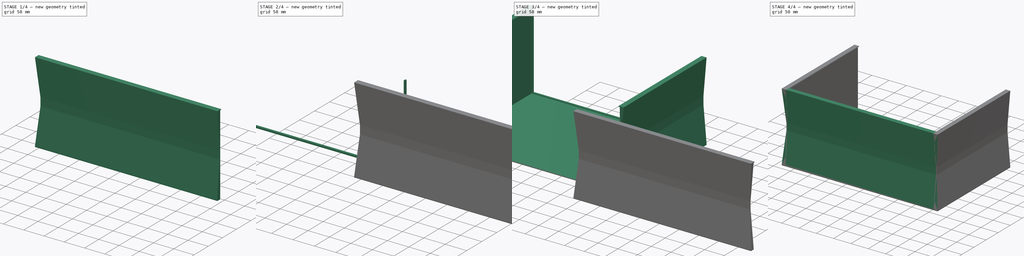
[diagram: build sequence overview — one tinted view per stage of 4, left to right]
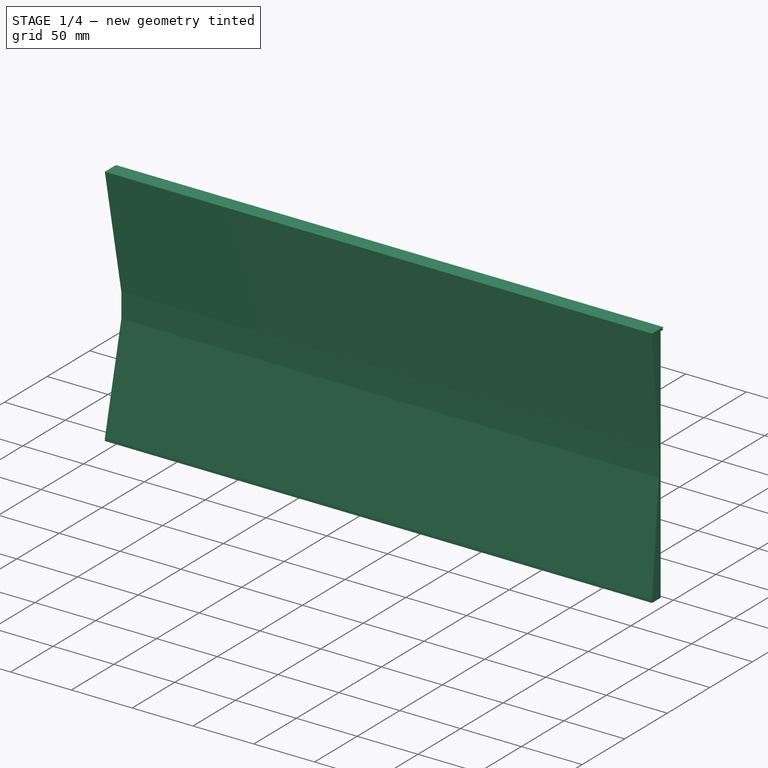
[diagram: stage 1 of 4 — iso view after this stage's code; geometry added in this stage tinted green]
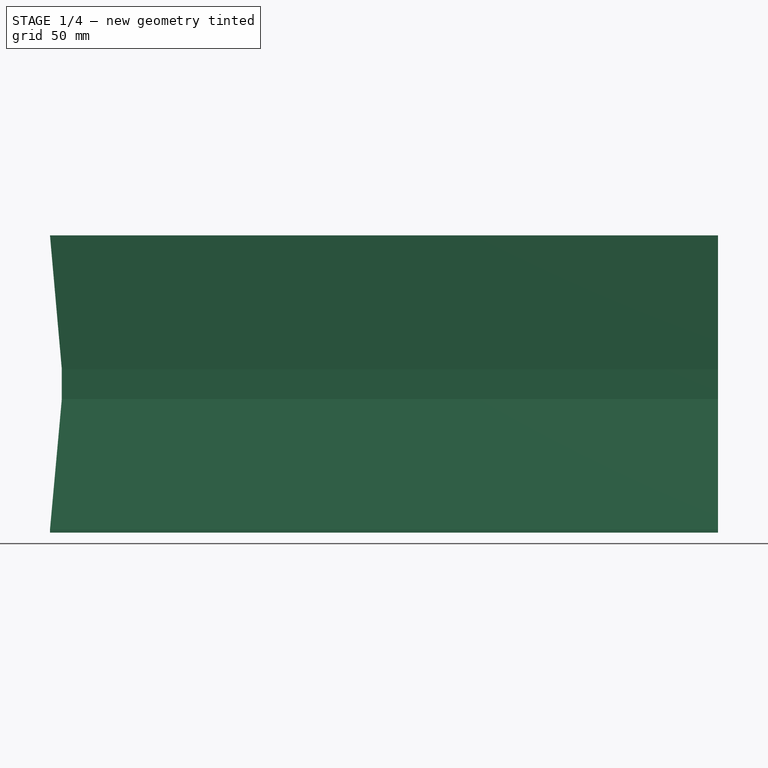
[diagram: stage 1 of 4 — front view after this stage's code; geometry added in this stage tinted green]
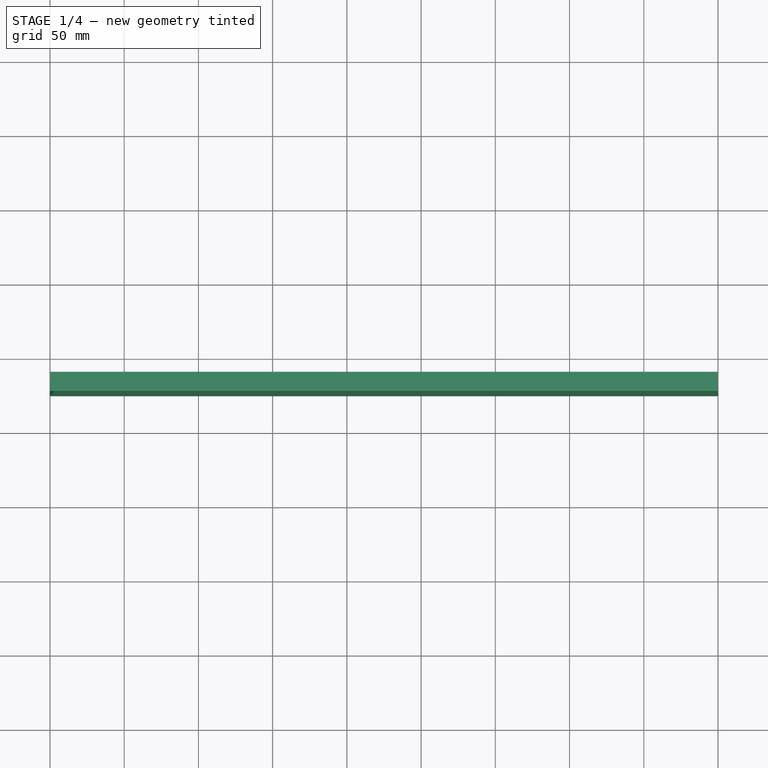
[diagram: stage 1 of 4 — top view after this stage's code; geometry added in this stage tinted green]
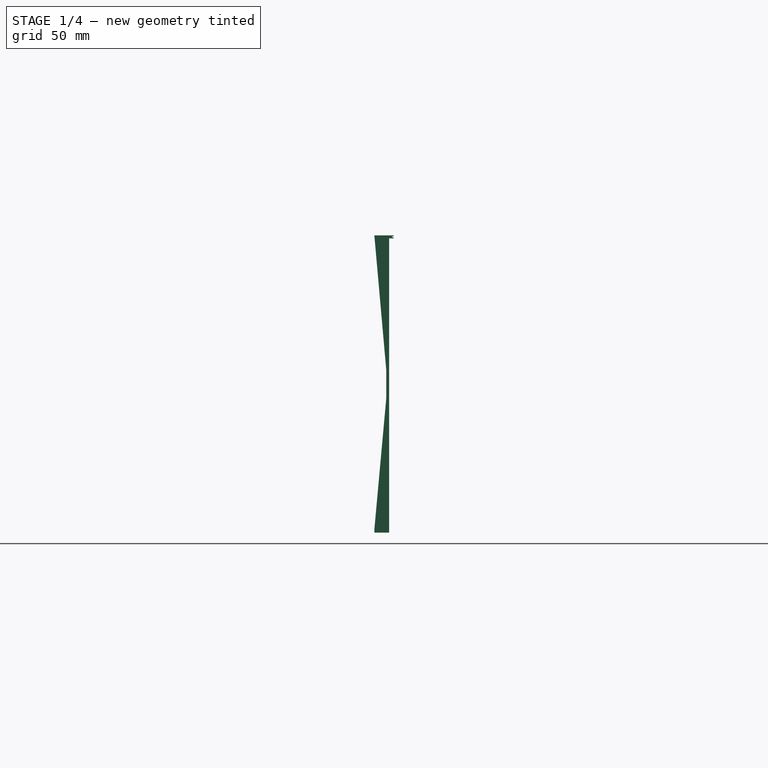
[diagram: stage 1 of 4 — right view after this stage's code; geometry added in this stage tinted green]
FCSTD DOCUMENT  (FreeCAD 0.19R24276 (Git))
Label: Vetala-Case-Main
License: All rights reserved
LicenseURL: http://en.wikipedia.org/wiki/All_rights_reserved
objects: Sketcher::SketchObject×6, Part::Extrusion×6, Part::Feature×3, PartDesign::Pocket×3, Part::MultiFuse×2, PartDesign::FeatureBase×2, PartDesign::Body×2
note: 27 computed .brp shape members not serialized (recipe doc carries the construction recipe); baked Part::Feature solids carry a one-line shape summary decoded from their .brp

FEATURE [Part::Feature] Wire002
  Placement = pos=(0,0,0) rot=(0,0,-1;1.5708rad)
  shape: bbox 2e-07 x 12.99 x 200.2 mm, 0 faces, 0 solids (baked)
FEATURE [Part::Extrusion] Extrude005  label="Front"
  Base = -> Wire002
  Dir = (1,1e-16,-3e-16)
  DirMode = 2
  FaceMakerClass = Part::FaceMakerBullseye
  LengthFwd = 450
  LengthRev = 0
  Placement = pos=(-375,75,0) rot=(0,0,1;0rad)
  Solid = true
  Symmetric = false
FEATURE [PartDesign::FeatureBase] BaseFeature
  BaseFeature = -> Extrude005
FEATURE [Sketcher::SketchObject] Sketch003
  FullyConstrained = false
  Placement = pos=(375,0,0) rot=(-1,0,0;4.71239rad)
  sketch-geometry (6):
    g0: LineSegment StartX=-225 StartY=200.057 StartZ=0 EndX=-217.033 EndY=109.971 EndZ=0
    g1: LineSegment StartX=-217.033 StartY=109.971 StartZ=0 EndX=-217.033 EndY=89.9593 EndZ=0
    g2: LineSegment StartX=-217.033 StartY=89.9593 StartZ=0 EndX=-225 EndY=2.1225 EndZ=0
    g3: LineSegment StartX=-225 StartY=2.1225 StartZ=0 EndX=-227.36 EndY=2.1225 EndZ=0
    g4: LineSegment StartX=-227.36 StartY=2.1225 StartZ=0 EndX=-227.36 EndY=200.057 EndZ=0
    g5: LineSegment StartX=-227.36 StartY=200.057 StartZ=0 EndX=-225 EndY=200.057 EndZ=0
  constraints (10):
    c: Coincident(g1,g0)
    c: Vertical(g1)
    c: Coincident(g2,g1)
    c: Coincident(g3,g2)
    c: Horizontal(g3)
    c: Coincident(g4,g3)
    c: Vertical(g4)
    c: Coincident(g5,g4)
    c: Coincident(g5,g0)
    c: Horizontal(g5)
FEATURE [PartDesign::Pocket] Pocket
  BaseFeature = -> BaseFeature
  Length = 500
  Length2 = 100
  Midplane = true
  Profile = -> Sketch003
  Type = 0
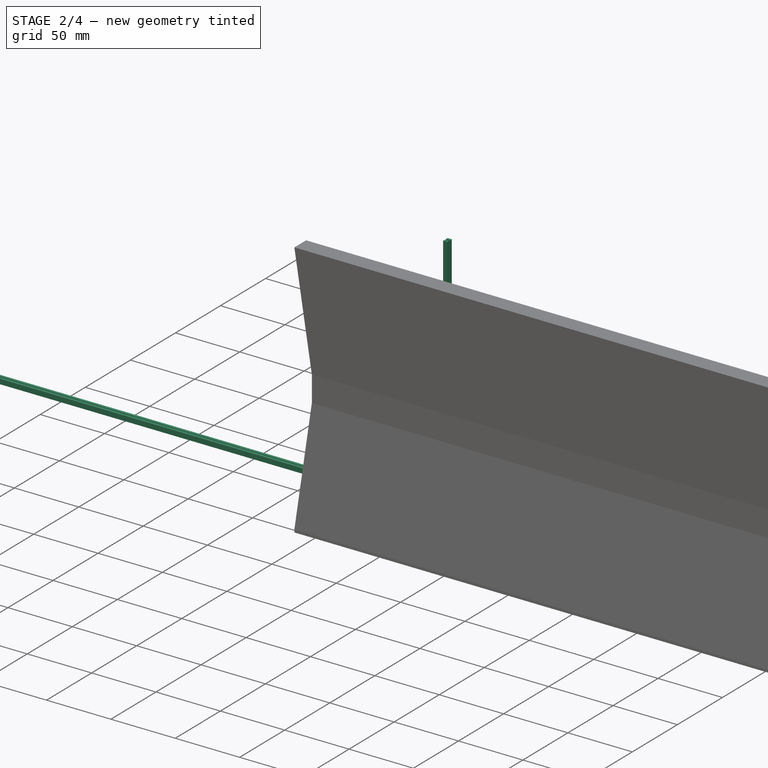
[diagram: stage 2 of 4 — iso view after this stage's code; geometry added in this stage tinted green]
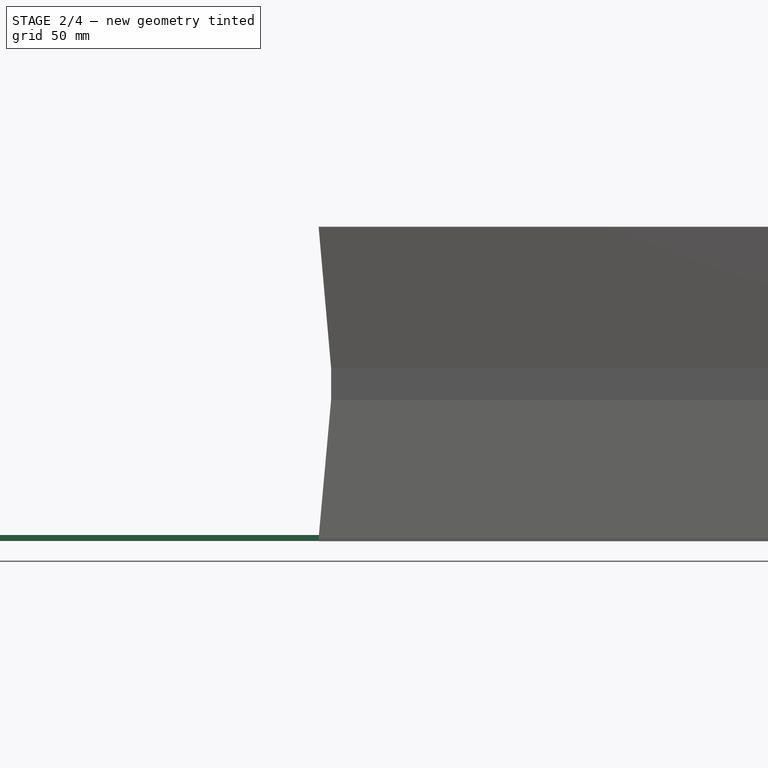
[diagram: stage 2 of 4 — front view after this stage's code; geometry added in this stage tinted green]
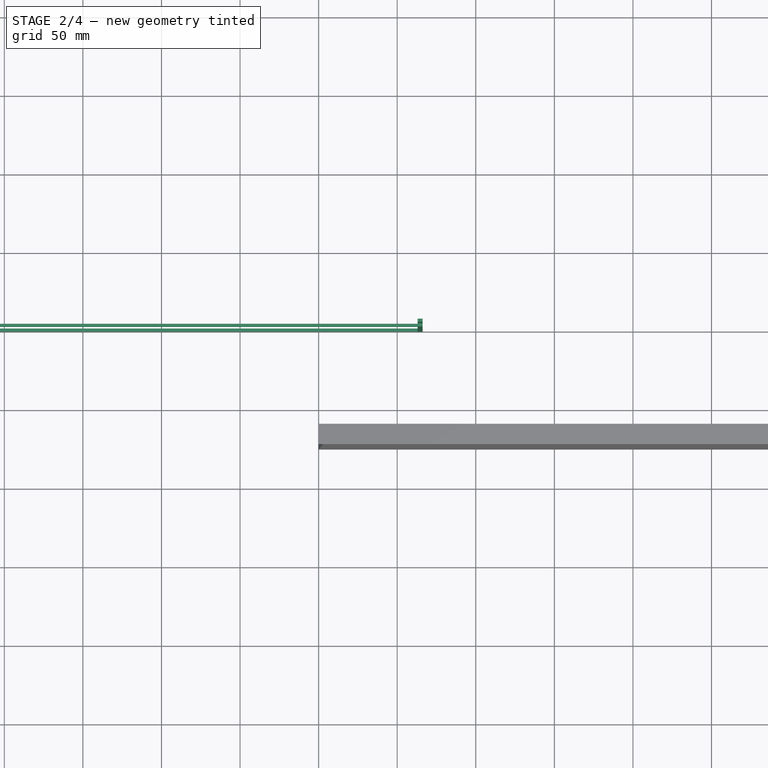
[diagram: stage 2 of 4 — top view after this stage's code; geometry added in this stage tinted green]
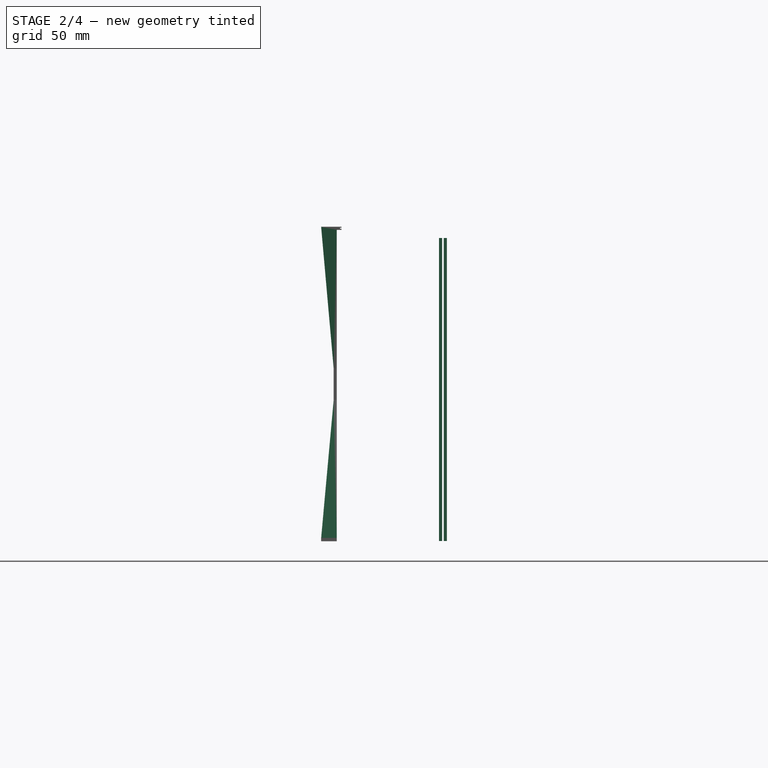
[diagram: stage 2 of 4 — right view after this stage's code; geometry added in this stage tinted green]
FEATURE [Sketcher::SketchObject] Sketch001
  FullyConstrained = false
  Placement = pos=(0,-150,0) rot=(1,0,0;1.5708rad)
  sketch-geometry (8):
    g0: LineSegment StartX=-213.019 StartY=3.99983 StartZ=0 EndX=-213.019 EndY=192.973 EndZ=0
    g1: LineSegment StartX=-213.019 StartY=192.973 StartZ=0 EndX=-216.785 EndY=192.973 EndZ=0
    g2: LineSegment StartX=213.036 StartY=3.99983 StartZ=0 EndX=213.036 EndY=193.007 EndZ=0
    g3: LineSegment StartX=213.036 StartY=3.99983 StartZ=0 EndX=-213.019 EndY=3.99983 EndZ=0
    g4: LineSegment StartX=213.036 StartY=193.007 StartZ=0 EndX=216.196 EndY=193.007 EndZ=0
    g5: LineSegment StartX=216.196 StartY=193.007 StartZ=0 EndX=216.196 EndY=0.188954 EndZ=0
    g6: LineSegment StartX=-216.785 StartY=192.973 StartZ=0 EndX=-216.785 EndY=0.188954 EndZ=0
    g7: LineSegment StartX=-216.785 StartY=0.188954 StartZ=0 EndX=216.196 EndY=0.188954 EndZ=0
  constraints (14):
    c: Coincident(g0,g1)
    c: Horizontal(g1)
    c: Vertical(g0)
    c: Vertical(g2)
    c: Coincident(g3,g2)
    c: Horizontal(g3)
    c: Coincident(g4,g2)
    c: Coincident(g5,g4)
    c: Vertical(g5)
    c: Coincident(g6,g1)
    c: Vertical(g6)
    c: Coincident(g7,g6)
    c: Coincident(g7,g5)
    c: Horizontal(g7)
FEATURE [Part::Extrusion] Extrude003  label="Outer-Back-Holder"
  Base = -> Sketch001
  Dir = (0,-1,0)
  DirMode = 2
  FaceMakerClass = Part::FaceMakerBullseye
  LengthFwd = 2
  LengthRev = 0
  Reversed = true
  Solid = true
  Symmetric = false
FEATURE [Sketcher::SketchObject] Sketch002
  FullyConstrained = false
  Placement = pos=(0,-150,0) rot=(1,0,0;1.5708rad)
  sketch-geometry (8):
    g0: LineSegment StartX=-213.019 StartY=3.99983 StartZ=0 EndX=-213.019 EndY=192.973 EndZ=0
    g1: LineSegment StartX=-213.019 StartY=192.973 StartZ=0 EndX=-216.785 EndY=192.973 EndZ=0
    g2: LineSegment StartX=213.036 StartY=3.99983 StartZ=0 EndX=213.036 EndY=193.007 EndZ=0
    g3: LineSegment StartX=213.036 StartY=3.99983 StartZ=0 EndX=-213.019 EndY=3.99983 EndZ=0
    g4: LineSegment StartX=213.036 StartY=193.007 StartZ=0 EndX=216.196 EndY=193.007 EndZ=0
    g5: LineSegment StartX=216.196 StartY=193.007 StartZ=0 EndX=216.196 EndY=0.188954 EndZ=0
    g6: LineSegment StartX=-216.785 StartY=192.973 StartZ=0 EndX=-216.785 EndY=0.188954 EndZ=0
    g7: LineSegment StartX=-216.785 StartY=0.188954 StartZ=0 EndX=216.196 EndY=0.188954 EndZ=0
  constraints (14):
    c: Coincident(g0,g1)
    c: Horizontal(g1)
    c: Vertical(g0)
    c: Vertical(g2)
    c: Coincident(g3,g2)
    c: Horizontal(g3)
    c: Coincident(g4,g2)
    c: Coincident(g5,g4)
    c: Vertical(g5)
    c: Coincident(g6,g1)
    c: Vertical(g6)
    c: Coincident(g7,g6)
    c: Coincident(g7,g5)
    c: Horizontal(g7)
FEATURE [Part::Extrusion] Extrude004  label="Inner-Back-Holder"
  Base = -> Sketch002
  Dir = (0,-1,0)
  DirMode = 2
  FaceMakerClass = Part::FaceMakerBullseye
  LengthFwd = 2
  LengthRev = 0
  Placement = pos=(0,3,0) rot=(0,0,1;0rad)
  Reversed = true
  Solid = true
  Symmetric = false
FEATURE [PartDesign::Body] Body001  label=" Main Body"
  BaseFeature = -> Fusion
  Group = -> [BaseFeature001,Sketch004,Pocket001]
  Origin = -> Origin001
  Tip = -> Pocket001
FEATURE [Sketcher::SketchObject] Sketch005
  FullyConstrained = false
  Placement = pos=(375,-300,0) rot=(-1,0,0;4.71239rad)
  sketch-geometry (6):
    g0: LineSegment StartX=225 StartY=200.028 StartZ=0 EndX=225.189 EndY=200.028 EndZ=0
    g1: LineSegment StartX=225 StartY=200.028 StartZ=0 EndX=217.035 EndY=109.97 EndZ=0
    g2: LineSegment StartX=217.035 StartY=109.97 StartZ=0 EndX=217.035 EndY=89.9595 EndZ=0
    g3: LineSegment StartX=217.035 StartY=89.9595 StartZ=0 EndX=225 EndY=2.12374 EndZ=0
    g4: LineSegment StartX=225 StartY=2.12374 StartZ=0 EndX=225.189 EndY=2.12374 EndZ=0
    g5: LineSegment StartX=225.189 StartY=2.12374 StartZ=0 EndX=225.189 EndY=200.028 EndZ=0
  constraints (10):
    c: Horizontal(g0)
    c: Coincident(g1,g0)
    c: Coincident(g2,g1)
    c: Vertical(g2)
    c: Coincident(g3,g2)
    c: Coincident(g4,g3)
    c: Horizontal(g4)
    c: Coincident(g5,g4)
    c: Coincident(g5,g0)
    c: Vertical(g5)
FEATURE [PartDesign::Pocket] Pocket002
  BaseFeature = -> Pocket
  Length = 500
  Length2 = 100
  Profile = -> Sketch005
  Type = 0
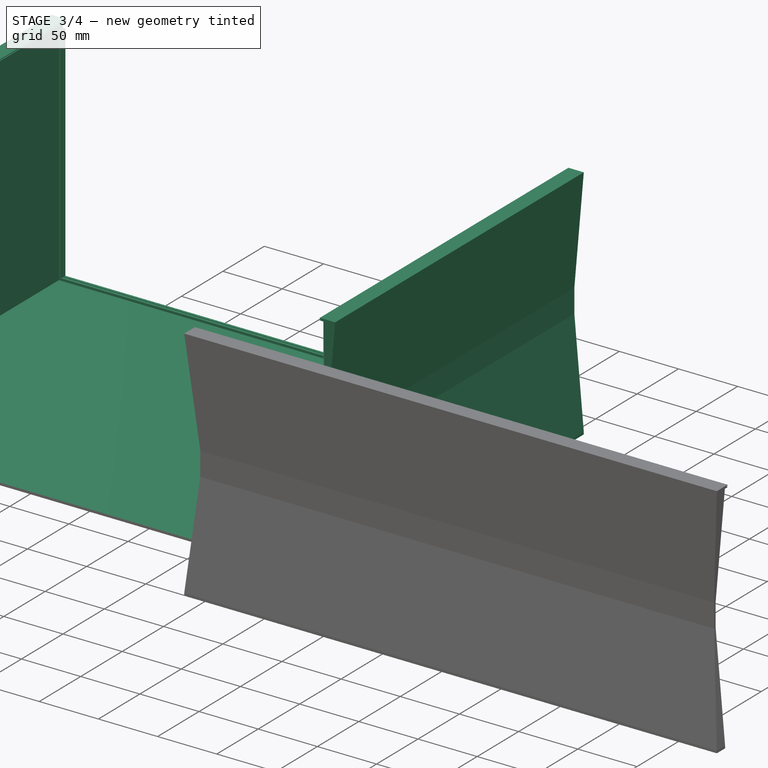
[diagram: stage 3 of 4 — iso view after this stage's code; geometry added in this stage tinted green]
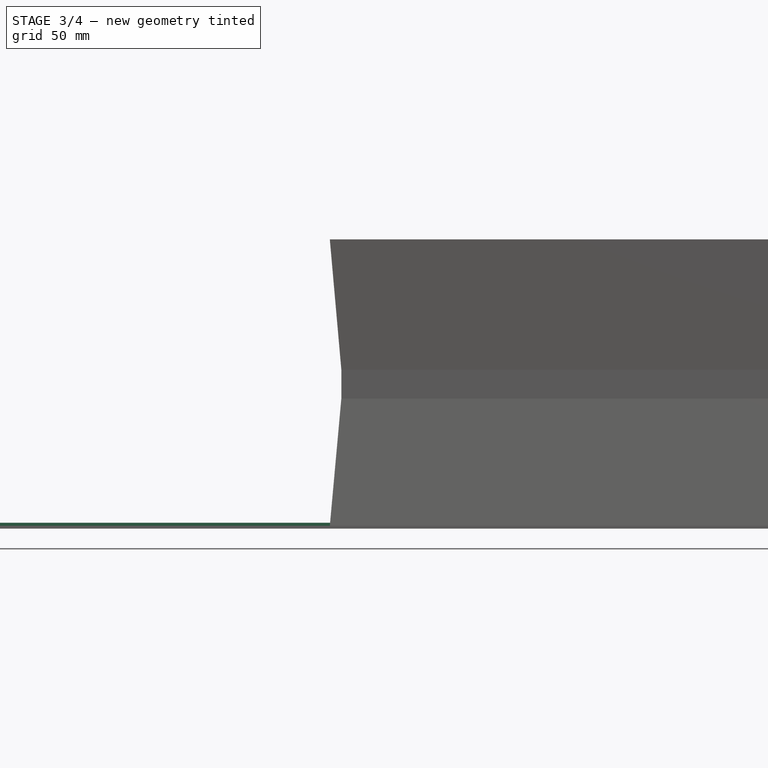
[diagram: stage 3 of 4 — front view after this stage's code; geometry added in this stage tinted green]
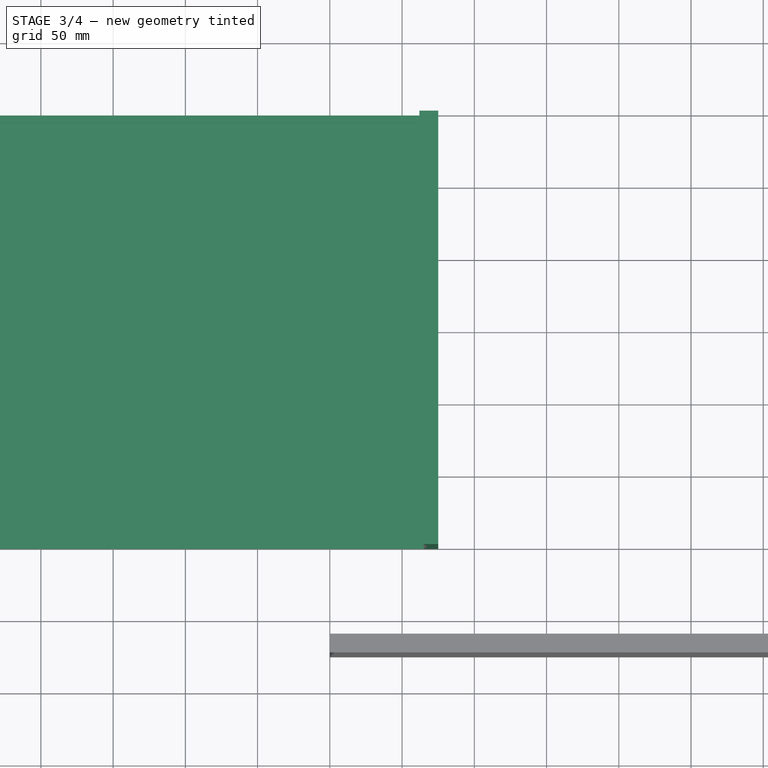
[diagram: stage 3 of 4 — top view after this stage's code; geometry added in this stage tinted green]
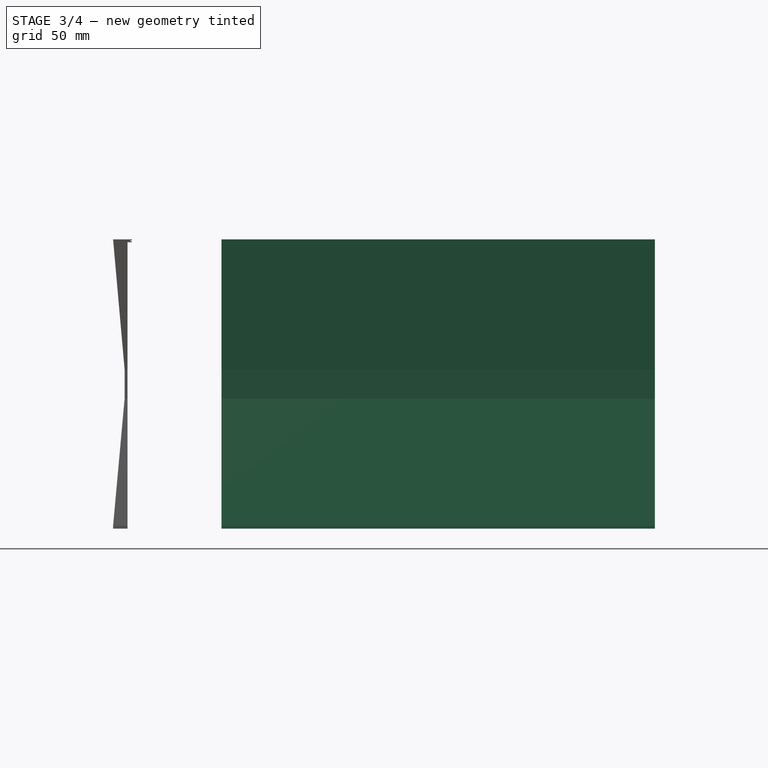
[diagram: stage 3 of 4 — right view after this stage's code; geometry added in this stage tinted green]
FEATURE [Sketcher::SketchObject] Sketch
  FullyConstrained = false
  sketch-geometry (4):
    g0: LineSegment StartX=-224.98 StartY=150 StartZ=0 EndX=224.973 EndY=150 EndZ=0
    g1: LineSegment StartX=224.973 StartY=150 StartZ=0 EndX=224.973 EndY=-149.979 EndZ=0
    g2: LineSegment StartX=224.973 StartY=-149.979 StartZ=0 EndX=-224.98 EndY=-149.979 EndZ=0
    g3: LineSegment StartX=-224.98 StartY=-149.979 StartZ=0 EndX=-224.98 EndY=150 EndZ=0
  constraints (8):
    c: Coincident(g0,g1)
    c: Coincident(g1,g2)
    c: Coincident(g2,g3)
    c: Coincident(g3,g0)
    c: Horizontal(g0)
    c: Horizontal(g2)
    c: Vertical(g1)
    c: Vertical(g3)
FEATURE [Part::Extrusion] Extrude  label="Base"
  Base = -> Sketch
  Dir = (0,0,1)
  DirMode = 2
  FaceMakerClass = Part::FaceMakerBullseye
  LengthFwd = 2
  LengthRev = 0
  Solid = true
  Symmetric = false
FEATURE [Part::Feature] Wire
  shape: bbox 12.99 x 2e-07 x 200.2 mm, 0 faces, 0 solids (baked)
FEATURE [Part::Extrusion] Extrude001  label="Right"
  Base = -> Wire
  Dir = (0,1,-3e-16)
  DirMode = 2
  FaceMakerClass = Part::FaceMakerBullseye
  LengthFwd = 300
  LengthRev = 0
  Reversed = true
  Solid = true
  Symmetric = false
FEATURE [Part::Feature] Wire001
  shape: bbox 12.99 x 2e-07 x 200.2 mm, 0 faces, 0 solids (baked)
FEATURE [Part::Extrusion] Extrude002  label="Left"
  Base = -> Wire001
  Dir = (0,1,-3e-16)
  DirMode = 2
  FaceMakerClass = Part::FaceMakerBullseye
  LengthFwd = 300
  LengthRev = 0
  Placement = pos=(0,0,0) rot=(0,0,1;3.14159rad)
  Reversed = true
  Solid = true
  Symmetric = false
FEATURE [Part::MultiFuse] Fusion  label="Main Body"
  Placement = pos=(0,0,0) rot=(0,0,1;3.14159rad)
  Shapes = -> [Extrude,Extrude001,Extrude002,Extrude004,Extrude003]
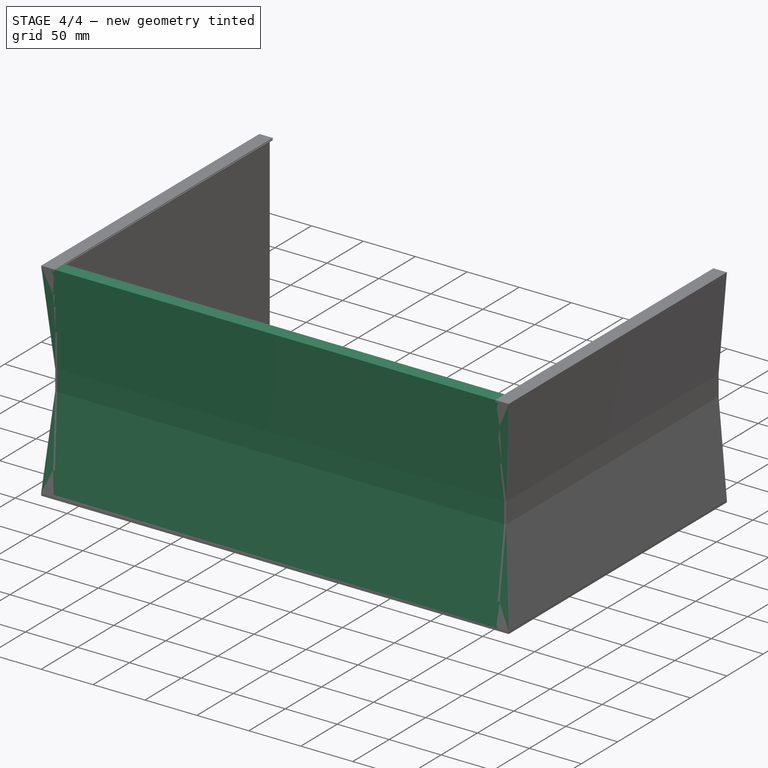
[diagram: stage 4 of 4 — iso view after this stage's code; geometry added in this stage tinted green]
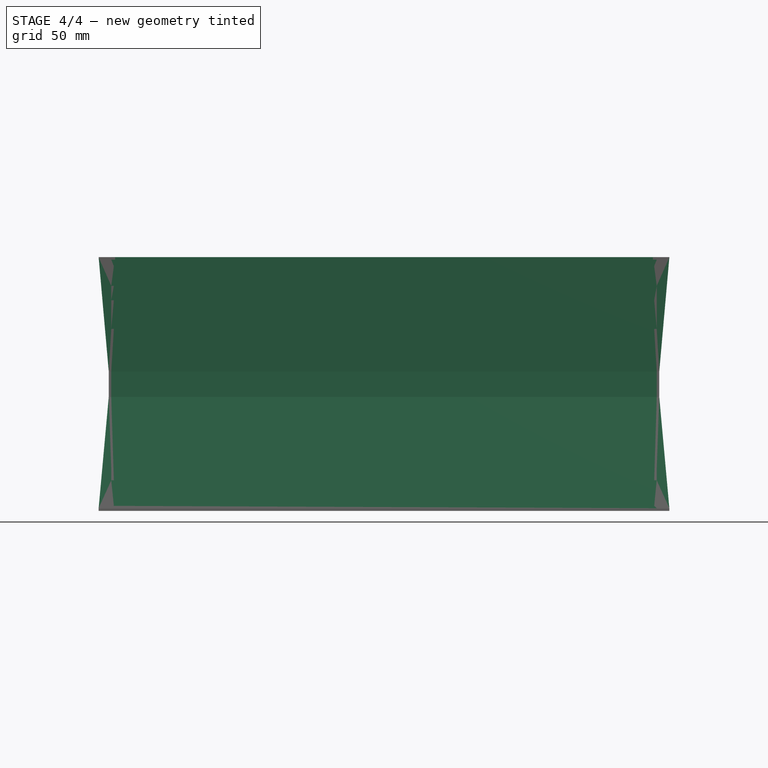
[diagram: stage 4 of 4 — front view after this stage's code; geometry added in this stage tinted green]
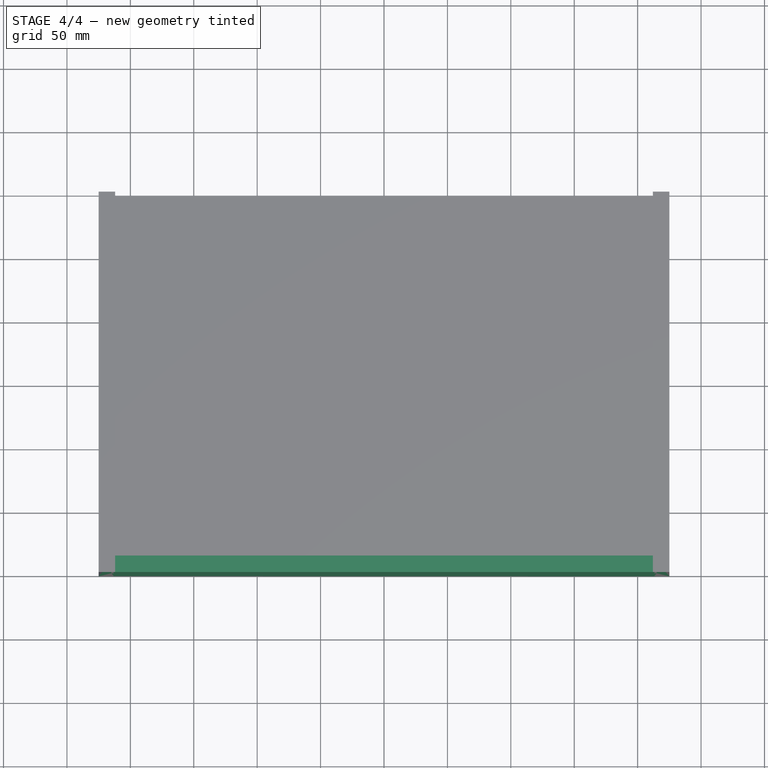
[diagram: stage 4 of 4 — top view after this stage's code; geometry added in this stage tinted green]
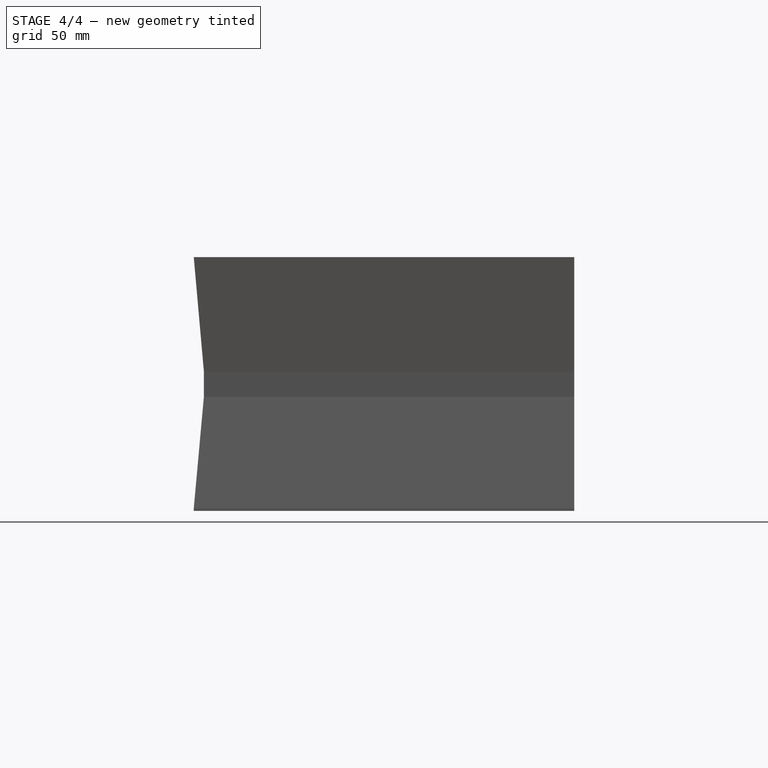
[diagram: stage 4 of 4 — right view after this stage's code; geometry added in this stage tinted green]
FEATURE [Sketcher::SketchObject] Sketch004
  FullyConstrained = false
  Placement = pos=(600,0,0) rot=(0.57735,0.57735,0.57735;2.0944rad)
  sketch-geometry (6):
    g0: LineSegment StartX=-150 StartY=200.026 StartZ=0 EndX=-150.207 EndY=200.026 EndZ=0
    g1: LineSegment StartX=-150 StartY=200.026 StartZ=0 EndX=-142.033 EndY=109.971 EndZ=0
    g2: LineSegment StartX=-142.033 StartY=109.971 StartZ=0 EndX=-142.033 EndY=89.9589 EndZ=0
    g3: LineSegment StartX=-142.033 StartY=89.9589 StartZ=0 EndX=-150 EndY=2.1241 EndZ=0
    g4: LineSegment StartX=-150 StartY=2.1241 StartZ=0 EndX=-150.207 EndY=2.1241 EndZ=0
    g5: LineSegment StartX=-150.207 StartY=2.1241 StartZ=0 EndX=-150.207 EndY=200.026 EndZ=0
  constraints (10):
    c: Horizontal(g0)
    c: Coincident(g1,g0)
    c: Coincident(g2,g1)
    c: Vertical(g2)
    c: Coincident(g3,g2)
    c: Coincident(g4,g3)
    c: Horizontal(g4)
    c: Coincident(g5,g4)
    c: Coincident(g5,g0)
    c: Vertical(g5)
FEATURE [PartDesign::FeatureBase] BaseFeature001
  BaseFeature = -> Fusion
FEATURE [PartDesign::Pocket] Pocket001
  BaseFeature = -> BaseFeature001
  Length = 500
  Length2 = 100
  Profile = -> Sketch004
  Type = 1
FEATURE [PartDesign::Body] Body  label="Front001"
  BaseFeature = -> Extrude005
  Group = -> [BaseFeature,Sketch003,Pocket,Sketch005,Pocket002]
  Origin = -> Origin
  Placement = pos=(-375,75,0) rot=(0,0,1;0rad)
  Tip = -> Pocket002
  expr: .Placement.Base.y = 75
FEATURE [Part::MultiFuse] Fusion001  label="Main Body001"
  Shapes = -> [Body,Body001]
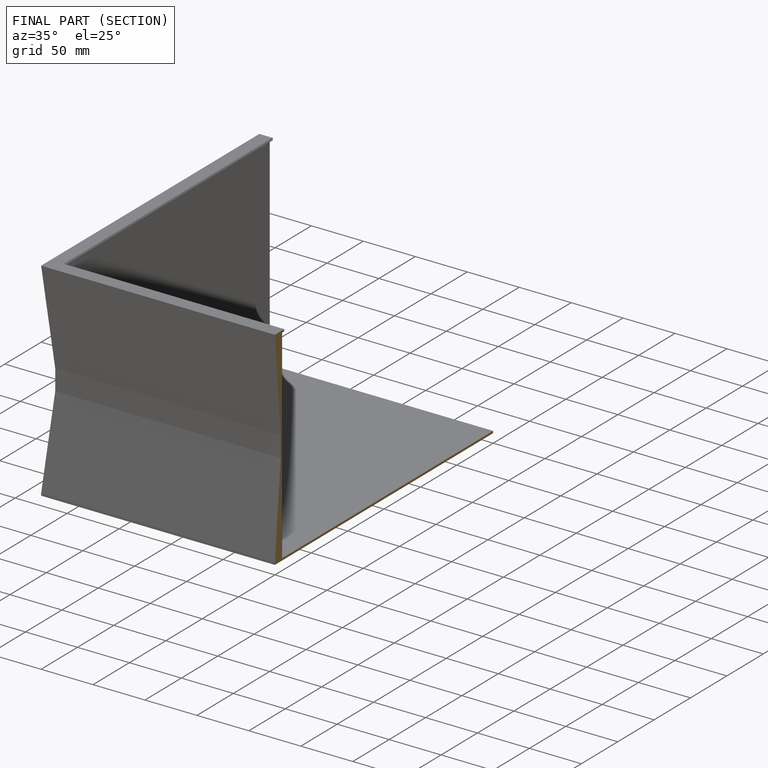
[diagram: finished part — half-section view (interior)]
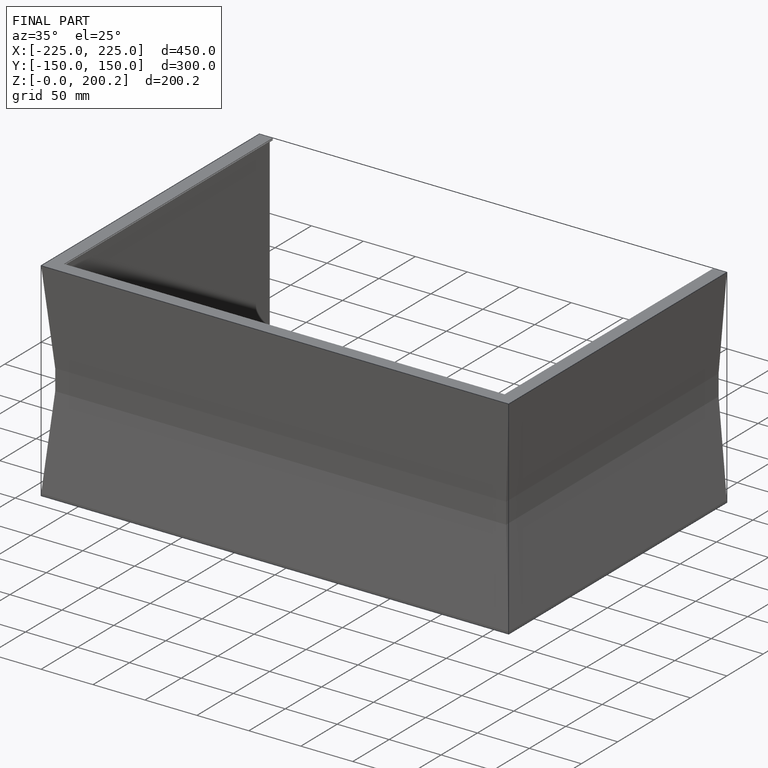
[diagram: finished part — iso view with bounding-box wireframe]
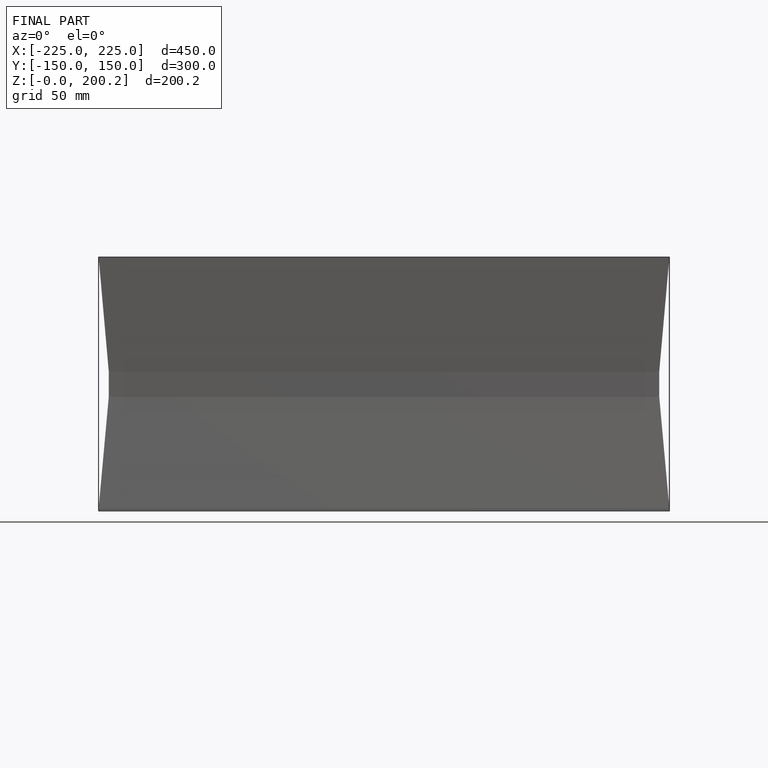
[diagram: finished part — front view with bounding-box wireframe]
